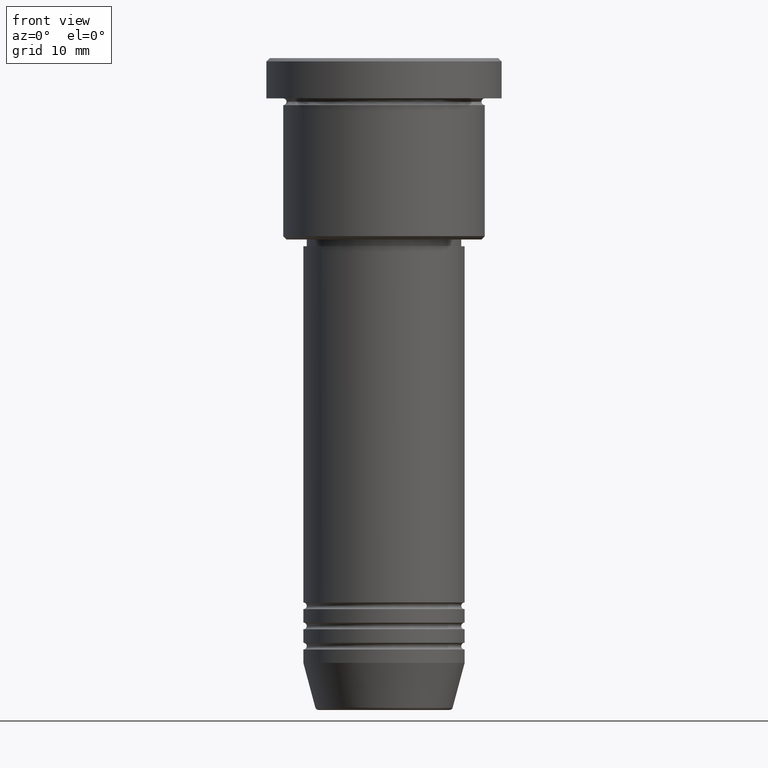
[diagram: clean part render]
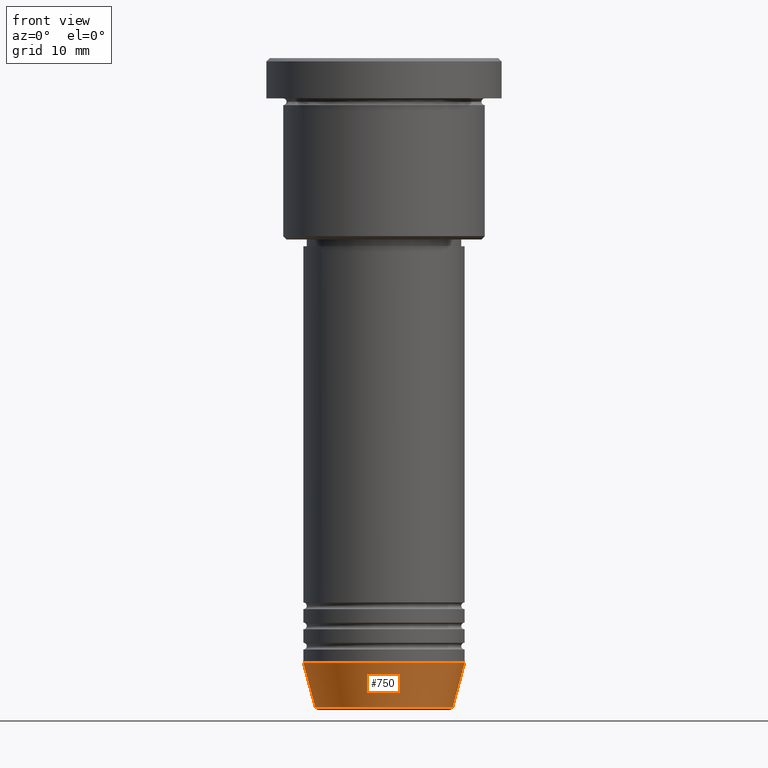
[diagram: same view with one face highlighted and labeled with its STEP entity id]
A machine part, front view. The second image highlights one B-rep face of the part: STEP entity #750.
In plain terms, the highlighted conical surface has half-angle 15 deg.
Its self-contained STEP definition (entity closure, byte-faithful):
#30 = CARTESIAN_POINT ( 'NONE',  ( 0.000000000000000000, 0.000000000000000000, -96.62940952255127058 ) ) ;
#89 = EDGE_CURVE ( 'NONE', #619, #1164, #866, .T. ) ;
#91 = DIRECTION ( 'NONE',  ( 1.000000000000000000, 0.000000000000000000, 0.000000000000000000 ) ) ;
#134 = EDGE_CURVE ( 'NONE', #619, #673, #1078, .T. ) ;
#187 = DIRECTION ( 'NONE',  ( -0.2588190451025213501, 3.169619151431772337E-17, 0.9659258262890680902 ) ) ;
#253 = AXIS2_PLACEMENT_3D ( 'NONE', #490, #917, #829 ) ;
#354 = ORIENTED_EDGE ( 'NONE', *, *, #1032, .T. ) ;
#367 = CIRCLE ( 'NONE', #253, 12.00000000000000000 ) ;
#414 = CARTESIAN_POINT ( 'NONE',  ( -12.00000000000000000, 1.469576158976823947E-15, -90.00000000000000000 ) ) ;
#458 = ORIENTED_EDGE ( 'NONE', *, *, #546, .F. ) ;
#460 = CARTESIAN_POINT ( 'NONE',  ( -12.00000000000000000, 1.469576158976823947E-15, -90.00000000000000000 ) ) ;
#472 = CARTESIAN_POINT ( 'NONE',  ( 10.22365507213718949, 0.000000000000000000, -96.62940952255127058 ) ) ;
#490 = CARTESIAN_POINT ( 'NONE',  ( 0.000000000000000000, 0.000000000000000000, -90.00000000000000000 ) ) ;
#533 = VERTEX_POINT ( 'NONE', #577 ) ;
#546 = EDGE_CURVE ( 'NONE', #1164, #533, #367, .T. ) ;
#577 = CARTESIAN_POINT ( 'NONE',  ( 12.00000000000000000, 0.000000000000000000, -90.00000000000000000 ) ) ;
#599 = CARTESIAN_POINT ( 'NONE',  ( 0.000000000000000000, 0.000000000000000000, -90.00000000000000000 ) ) ;
#610 = ORIENTED_EDGE ( 'NONE', *, *, #89, .F. ) ;
#619 = VERTEX_POINT ( 'NONE', #1103 ) ;
#620 = ORIENTED_EDGE ( 'NONE', *, *, #134, .T. ) ;
#623 = CONICAL_SURFACE ( 'NONE', #783, 12.00000000000000000, 0.2617993877991500740 ) ;
#673 = VERTEX_POINT ( 'NONE', #472 ) ;
#750 = ADVANCED_FACE ( 'NONE', ( #872 ), #623, .T. ) ;
#752 = CARTESIAN_POINT ( 'NONE',  ( 12.00000000000000000, 0.000000000000000000, -90.00000000000000000 ) ) ;
#755 = DIRECTION ( 'NONE',  ( 0.2588190451025213501, 0.000000000000000000, 0.9659258262890680902 ) ) ;
#763 = VECTOR ( 'NONE', #187, 1000.000000000000000 ) ;
#783 = AXIS2_PLACEMENT_3D ( 'NONE', #599, #1129, #953 ) ;
#829 = DIRECTION ( 'NONE',  ( 1.000000000000000000, 0.000000000000000000, 0.000000000000000000 ) ) ;
#866 = LINE ( 'NONE', #460, #763 ) ;
#872 = FACE_OUTER_BOUND ( 'NONE', #1083, .T. ) ;
#917 = DIRECTION ( 'NONE',  ( -0.000000000000000000, -0.000000000000000000, 1.000000000000000000 ) ) ;
#940 = DIRECTION ( 'NONE',  ( -0.000000000000000000, -0.000000000000000000, 1.000000000000000000 ) ) ;
#953 = DIRECTION ( 'NONE',  ( 1.000000000000000000, 0.000000000000000000, 0.000000000000000000 ) ) ;
#981 = VECTOR ( 'NONE', #755, 1000.000000000000000 ) ;
#1019 = LINE ( 'NONE', #752, #981 ) ;
#1032 = EDGE_CURVE ( 'NONE', #673, #533, #1019, .T. ) ;
#1078 = CIRCLE ( 'NONE', #1099, 10.22365507213718949 ) ;
#1083 = EDGE_LOOP ( 'NONE', ( #610, #620, #354, #458 ) ) ;
#1099 = AXIS2_PLACEMENT_3D ( 'NONE', #30, #940, #91 ) ;
#1103 = CARTESIAN_POINT ( 'NONE',  ( -10.22365507213718949, 1.360806402472382547E-15, -96.62940952255127058 ) ) ;
#1129 = DIRECTION ( 'NONE',  ( -0.000000000000000000, -0.000000000000000000, 1.000000000000000000 ) ) ;
#1164 = VERTEX_POINT ( 'NONE', #414 ) ;